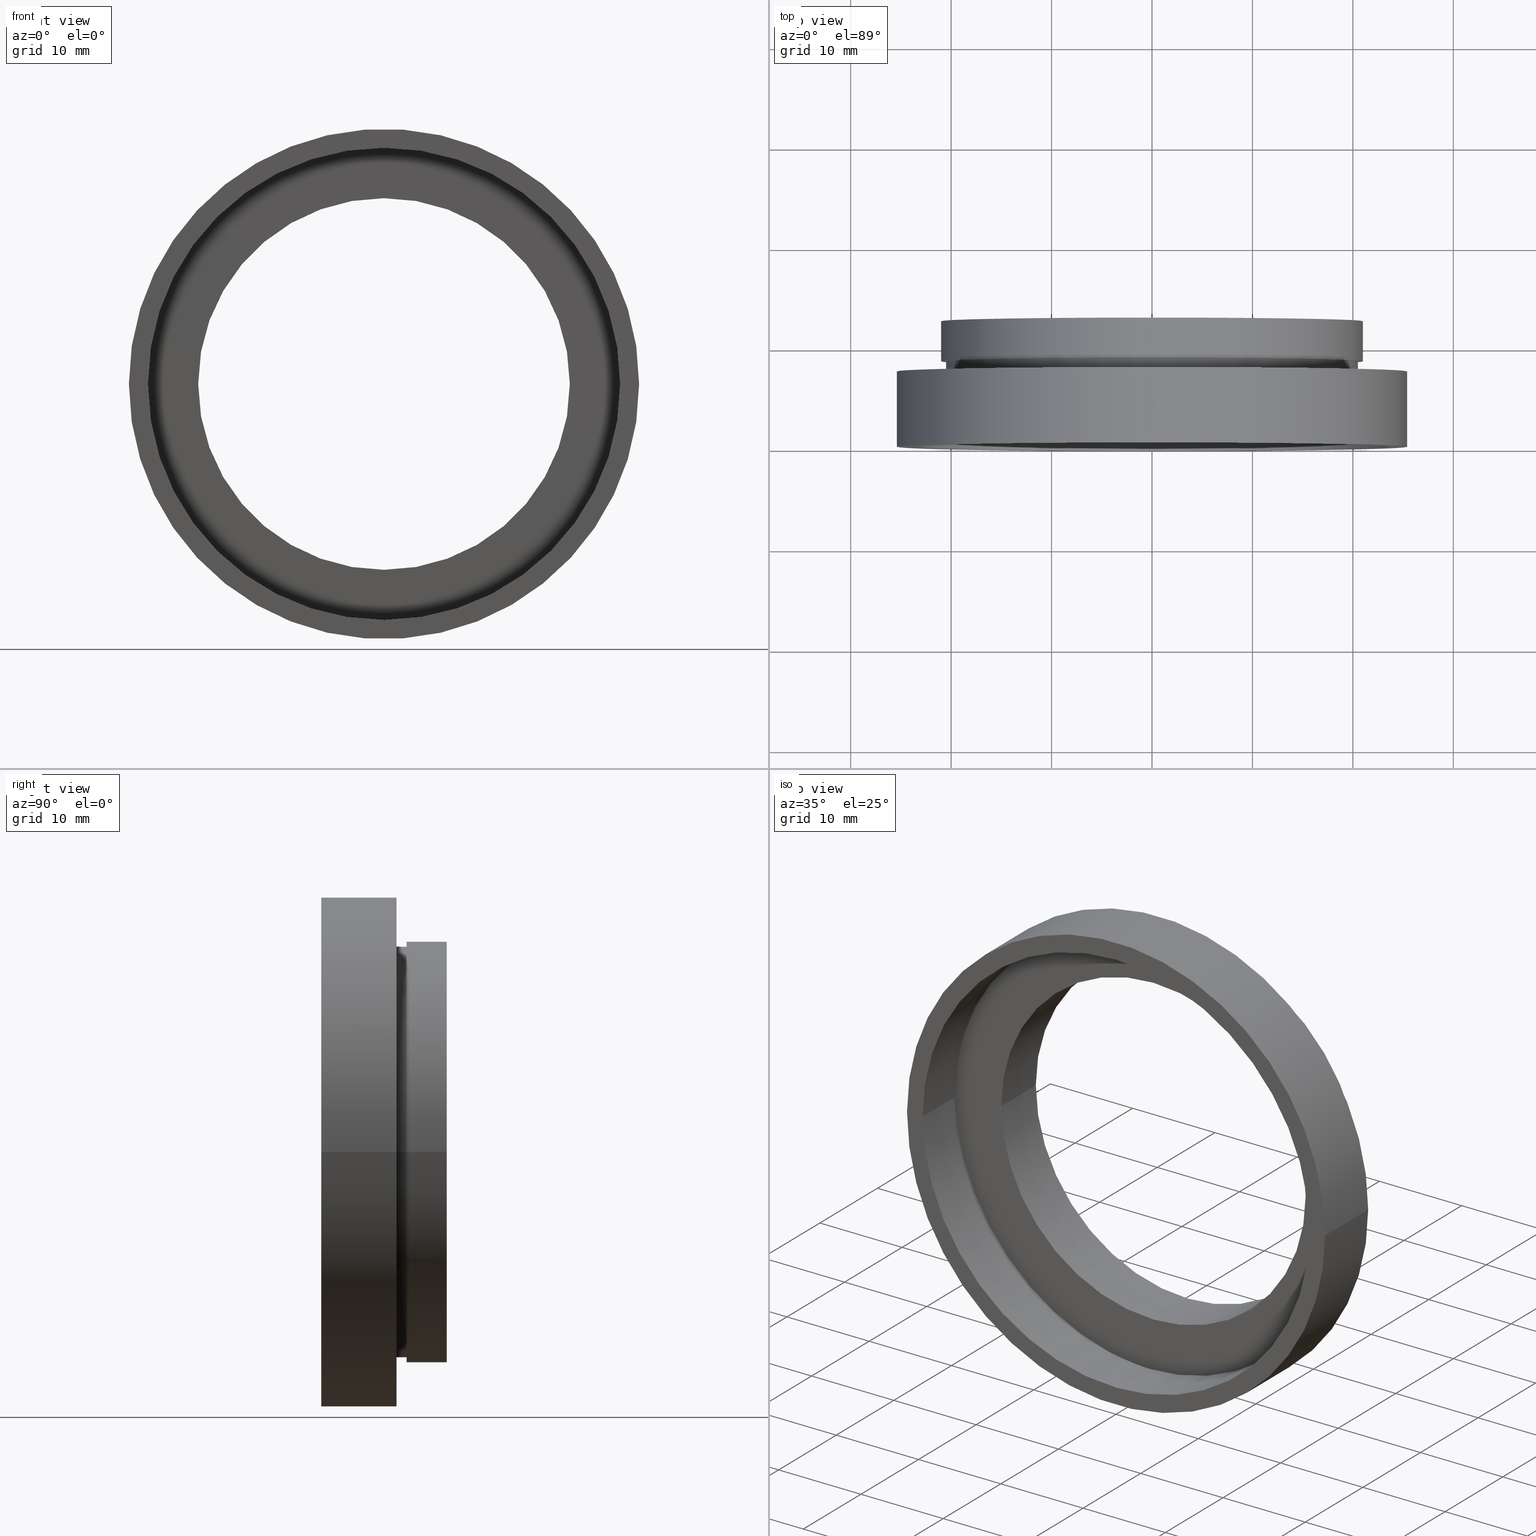
[diagram: canonical four-view strip — front | top / right | iso, engineering-drawing reading convention]
A machine part, canonical four-view strip (front | top / right | iso — engineering-drawing reading convention). The complete STEP part file that produces these views, byte-faithful:
ISO-10303-21;
HEADER;
FILE_DESCRIPTION (( 'STEP AP214' ),
    '1' );
FILE_NAME ('504020.STEP',
    '2019-09-30T07:22:57',
    ( 'user' ),
    ( '΢���й�' ),
    'SwSTEP 2.0',
    'SolidWorks 2016',
    '' );
FILE_SCHEMA (( 'AUTOMOTIVE_DESIGN' ));
ENDSEC;

DATA;
#1 = CARTESIAN_POINT ( 'NONE',  ( 5.371323195044475300E-016, 12.49999999999999600, 0.0000000000000000000 ) ) ;
#2 = ORIENTED_EDGE ( 'NONE', *, *, #577, .F. ) ;
#3 = CARTESIAN_POINT ( 'NONE',  ( -21.00000000000000000, 16.88601823708207300, 0.0000000000000000000 ) ) ;
#4 = AXIS2_PLACEMENT_3D ( 'NONE', #612, #576, #442 ) ;
#5 = FILL_AREA_STYLE_COLOUR ( '', #96 ) ;
#6 = ORIENTED_EDGE ( 'NONE', *, *, #122, .T. ) ;
#7 = ORIENTED_EDGE ( 'NONE', *, *, #250, .F. ) ;
#8 = ORIENTED_EDGE ( 'NONE', *, *, #541, .F. ) ;
#9 = FILL_AREA_STYLE_COLOUR ( '', #385 ) ;
#10 = DIRECTION ( 'NONE',  ( -1.224646799147351000E-016, 1.000000000000000000, -0.0000000000000000000 ) ) ;
#11 = CARTESIAN_POINT ( 'NONE',  ( 0.0000000000000000000, 16.88601823708207700, 0.0000000000000000000 ) ) ;
#12 = ADVANCED_FACE ( 'NONE', ( #47 ), #211, .F. ) ;
#13 = CARTESIAN_POINT ( 'NONE',  ( 0.0000000000000000000, 16.88601823708207700, 0.0000000000000000000 ) ) ;
#14 =( NAMED_UNIT ( * ) SI_UNIT ( $, .STERADIAN. ) SOLID_ANGLE_UNIT ( ) );
#15 =( NAMED_UNIT ( * ) PLANE_ANGLE_UNIT ( ) SI_UNIT ( $, .RADIAN. ) );
#16 = AXIS2_PLACEMENT_3D ( 'NONE', #554, #433, #88 ) ;
#17 = UNCERTAINTY_MEASURE_WITH_UNIT (LENGTH_MEASURE( 1.000000000000000100E-005 ), #418, 'distance_accuracy_value', 'NONE');
#18 = CARTESIAN_POINT ( 'NONE',  ( 20.50000000000000000, 16.88601823708208000, 2.510525938252074500E-015 ) ) ;
#19 = SURFACE_STYLE_USAGE ( .BOTH. , #499 ) ;
#20 = ORIENTED_EDGE ( 'NONE', *, *, #605, .T. ) ;
#21 = ORIENTED_EDGE ( 'NONE', *, *, #605, .F. ) ;
#22 = AXIS2_PLACEMENT_3D ( 'NONE', #141, #133, #132 ) ;
#23 = EDGE_CURVE ( 'NONE', #596, #617, #610, .T. ) ;
#24 =( LENGTH_UNIT ( ) NAMED_UNIT ( * ) SI_UNIT ( .MILLI., .METRE. ) );
#25 = SURFACE_STYLE_FILL_AREA ( #172 ) ;
#26 = SURFACE_STYLE_USAGE ( .BOTH. , #28 ) ;
#27 = DIRECTION ( 'NONE',  ( 1.000000000000000000, 0.0000000000000000000, 0.0000000000000000000 ) ) ;
#28 = SURFACE_SIDE_STYLE ('',( #202 ) ) ;
#29 = APPLICATION_PROTOCOL_DEFINITION ( 'draft international standard', 'automotive_design', 1998, #618 ) ;
#30 = FILL_AREA_STYLE ('',( #43 ) ) ;
#31 = ORIENTED_EDGE ( 'NONE', *, *, #219, .T. ) ;
#32 = UNCERTAINTY_MEASURE_WITH_UNIT (LENGTH_MEASURE( 1.000000000000000100E-005 ), #24, 'distance_accuracy_value', 'NONE');
#33 = AXIS2_PLACEMENT_3D ( 'NONE', #232, #479, #578 ) ;
#34 = ADVANCED_FACE ( 'NONE', ( #393 ), #131, .T. ) ;
#35 = SURFACE_STYLE_FILL_AREA ( #323 ) ;
#36 = DIRECTION ( 'NONE',  ( -1.224646799147351000E-016, 1.000000000000000000, -0.0000000000000000000 ) ) ;
#37 = CYLINDRICAL_SURFACE ( 'NONE', #156, 21.00000000000000000 ) ;
#38 =( GEOMETRIC_REPRESENTATION_CONTEXT ( 3 ) GLOBAL_UNCERTAINTY_ASSIGNED_CONTEXT ( ( #333 ) ) GLOBAL_UNIT_ASSIGNED_CONTEXT ( ( #459, #66, #107 ) ) REPRESENTATION_CONTEXT ( 'NONE', 'WORKASPACE' ) );
#39 = CARTESIAN_POINT ( 'NONE',  ( 0.0000000000000000000, 16.88601823708207700, 0.0000000000000000000 ) ) ;
#40 = VERTEX_POINT ( 'NONE', #546 ) ;
#41 = DIRECTION ( 'NONE',  ( -1.224646799147351000E-016, 1.000000000000000000, -0.0000000000000000000 ) ) ;
#42 = ORIENTED_EDGE ( 'NONE', *, *, #435, .T. ) ;
#43 = FILL_AREA_STYLE_COLOUR ( '', #208 ) ;
#44 = CARTESIAN_POINT ( 'NONE',  ( -25.39999999999999900, 16.88601823708207300, 0.0000000000000000000 ) ) ;
#45 =( GEOMETRIC_REPRESENTATION_CONTEXT ( 3 ) GLOBAL_UNCERTAINTY_ASSIGNED_CONTEXT ( ( #525 ) ) GLOBAL_UNIT_ASSIGNED_CONTEXT ( ( #163, #157, #153 ) ) REPRESENTATION_CONTEXT ( 'NONE', 'WORKASPACE' ) );
#46 = DIRECTION ( 'NONE',  ( -1.224646799147351000E-016, 1.000000000000000000, -0.0000000000000000000 ) ) ;
#47 = FACE_OUTER_BOUND ( 'NONE', #60, .T. ) ;
#48 = DIRECTION ( 'NONE',  ( -1.000000000000000000, -1.365923996832131600E-016, 0.0000000000000000000 ) ) ;
#49 = CARTESIAN_POINT ( 'NONE',  ( 2.067940818438636500E-015, -3.469446951953614200E-015, 0.0000000000000000000 ) ) ;
#50 = CARTESIAN_POINT ( 'NONE',  ( 21.00000000000000000, 16.88601823708208000, 2.571758278209441700E-015 ) ) ;
#51 = DIRECTION ( 'NONE',  ( -1.224646799147351000E-016, 1.000000000000000000, -0.0000000000000000000 ) ) ;
#52 = SURFACE_SIDE_STYLE ('',( #35 ) ) ;
#53 = ORIENTED_EDGE ( 'NONE', *, *, #555, .F. ) ;
#54 = MECHANICAL_DESIGN_GEOMETRIC_PRESENTATION_REPRESENTATION (  '', ( #97 ), #38 ) ;
#55 = DIRECTION ( 'NONE',  ( -1.000000000000000000, -1.875376730785737500E-016, 0.0000000000000000000 ) ) ;
#56 = DIRECTION ( 'NONE',  ( -1.000000000000000000, -1.224646799147351000E-016, 0.0000000000000000000 ) ) ;
#57 = AXIS2_PLACEMENT_3D ( 'NONE', #568, #597, #394 ) ;
#58 = EDGE_CURVE ( 'NONE', #129, #588, #349, .T. ) ;
#59 = DIRECTION ( 'NONE',  ( 1.000000000000000000, 1.224646799147351000E-016, 0.0000000000000000000 ) ) ;
#60 = EDGE_LOOP ( 'NONE', ( #444, #388, #574, #533 ) ) ;
#61 = EDGE_LOOP ( 'NONE', ( #559, #20, #480, #310 ) ) ;
#62 = EDGE_LOOP ( 'NONE', ( #358, #78 ) ) ;
#63 = CIRCLE ( 'NONE', #186, 18.50000000000000000 ) ;
#64 = DIRECTION ( 'NONE',  ( -1.224646799147351000E-016, 1.000000000000000000, 0.0000000000000000000 ) ) ;
#65 = DIRECTION ( 'NONE',  ( -1.000000000000000000, -1.406532548089303000E-016, 0.0000000000000000000 ) ) ;
#66 =( NAMED_UNIT ( * ) PLANE_ANGLE_UNIT ( ) SI_UNIT ( $, .RADIAN. ) );
#67 = AXIS2_PLACEMENT_3D ( 'NONE', #464, #565, #27 ) ;
#68 =( GEOMETRIC_REPRESENTATION_CONTEXT ( 3 ) GLOBAL_UNCERTAINTY_ASSIGNED_CONTEXT ( ( #17 ) ) GLOBAL_UNIT_ASSIGNED_CONTEXT ( ( #418, #539, #256 ) ) REPRESENTATION_CONTEXT ( 'NONE', 'WORKASPACE' ) );
#69 = ORIENTED_EDGE ( 'NONE', *, *, #509, .T. ) ;
#70 = DIRECTION ( 'NONE',  ( -1.224646799147351000E-016, 1.000000000000000000, -0.0000000000000000000 ) ) ;
#71 =( NAMED_UNIT ( * ) SI_UNIT ( $, .STERADIAN. ) SOLID_ANGLE_UNIT ( ) );
#72 = ORIENTED_EDGE ( 'NONE', *, *, #615, .F. ) ;
#73 = ADVANCED_FACE ( 'NONE', ( #114 ), #37, .T. ) ;
#74 =( NAMED_UNIT ( * ) SI_UNIT ( $, .STERADIAN. ) SOLID_ANGLE_UNIT ( ) );
#75 = CARTESIAN_POINT ( 'NONE',  ( 1.271920398992858000E-015, 6.499999999999997300, 0.0000000000000000000 ) ) ;
#76 = CARTESIAN_POINT ( 'NONE',  ( 25.39999999999999900, -1.592040838891564000E-016, 0.0000000000000000000 ) ) ;
#77 = DIRECTION ( 'NONE',  ( -1.224646799147351000E-016, 1.000000000000000000, -0.0000000000000000000 ) ) ;
#78 = ORIENTED_EDGE ( 'NONE', *, *, #372, .F. ) ;
#79 = ADVANCED_FACE ( 'NONE', ( #623 ), #346, .T. ) ;
#80 = CARTESIAN_POINT ( 'NONE',  ( 0.0000000000000000000, 16.88601823708207700, 0.0000000000000000000 ) ) ;
#81 = DIRECTION ( 'NONE',  ( -1.224646799147351000E-016, 1.000000000000000000, -0.0000000000000000000 ) ) ;
#82 = ADVANCED_FACE ( 'NONE', ( #335, #345 ), #221, .F. ) ;
#83 = PLANE ( 'NONE',  #573 ) ;
#84 = DIRECTION ( 'NONE',  ( -1.000000000000000000, -1.107270303814983000E-016, 0.0000000000000000000 ) ) ;
#85 = PRESENTATION_LAYER_ASSIGNMENT (  '', '', ( #97 ) ) ;
#86 =( LENGTH_UNIT ( ) NAMED_UNIT ( * ) SI_UNIT ( .MILLI., .METRE. ) );
#87 = MECHANICAL_DESIGN_GEOMETRIC_PRESENTATION_REPRESENTATION (  '', ( #109 ), #68 ) ;
#88 = DIRECTION ( 'NONE',  ( -1.000000000000000000, -1.439604544379092800E-016, 0.0000000000000000000 ) ) ;
#89 = VERTEX_POINT ( 'NONE', #365 ) ;
#90 = DIRECTION ( 'NONE',  ( -1.224646799147351000E-016, 1.000000000000000000, -0.0000000000000000000 ) ) ;
#91 = DIRECTION ( 'NONE',  ( -1.000000000000000000, -1.365923996832131600E-016, 0.0000000000000000000 ) ) ;
#92 =( NAMED_UNIT ( * ) SI_UNIT ( $, .STERADIAN. ) SOLID_ANGLE_UNIT ( ) );
#93 = EDGE_CURVE ( 'NONE', #89, #461, #336, .T. ) ;
#94 = ORIENTED_EDGE ( 'NONE', *, *, #219, .F. ) ;
#95 = SURFACE_STYLE_FILL_AREA ( #291 ) ;
#96 = COLOUR_RGB ( '',1.000000000000000000, 1.000000000000000000, 1.000000000000000000 ) ;
#97 = STYLED_ITEM ( 'NONE', ( #298 ), #404 ) ;
#98 = PRESENTATION_LAYER_ASSIGNMENT (  '', '', ( #109 ) ) ;
#99 =( NAMED_UNIT ( * ) PLANE_ANGLE_UNIT ( ) SI_UNIT ( $, .RADIAN. ) );
#100 = DIRECTION ( 'NONE',  ( -1.000000000000000000, -1.079703408284319800E-016, 0.0000000000000000000 ) ) ;
#101 = VERTEX_POINT ( 'NONE', #355 ) ;
#102 = MECHANICAL_DESIGN_GEOMETRIC_PRESENTATION_REPRESENTATION (  '', ( #162 ), #45 ) ;
#103 = DIRECTION ( 'NONE',  ( -1.224646799147351000E-016, 1.000000000000000000, -0.0000000000000000000 ) ) ;
#104 = EDGE_CURVE ( 'NONE', #455, #249, #353, .T. ) ;
#105 = CARTESIAN_POINT ( 'NONE',  ( 1.271920398992858200E-015, 6.499999999999995600, 0.0000000000000000000 ) ) ;
#106 = ORIENTED_EDGE ( 'NONE', *, *, #469, .F. ) ;
#107 =( NAMED_UNIT ( * ) SI_UNIT ( $, .STERADIAN. ) SOLID_ANGLE_UNIT ( ) );
#108 = CARTESIAN_POINT ( 'NONE',  ( 1.149455719078122700E-015, 7.499999999999998200, 0.0000000000000000000 ) ) ;
#109 = STYLED_ITEM ( 'NONE', ( #360 ), #124 ) ;
#110 = ORIENTED_EDGE ( 'NONE', *, *, #510, .T. ) ;
#111 = CARTESIAN_POINT ( 'NONE',  ( 0.0000000000000000000, 16.88601823708207700, 0.0000000000000000000 ) ) ;
#112 = ORIENTED_EDGE ( 'NONE', *, *, #93, .T. ) ;
#113 = EDGE_LOOP ( 'NONE', ( #452, #6, #304, #231 ) ) ;
#114 = FACE_OUTER_BOUND ( 'NONE', #599, .T. ) ;
#115 = ORIENTED_EDGE ( 'NONE', *, *, #478, .F. ) ;
#116 = DIRECTION ( 'NONE',  ( -1.000000000000000000, -9.376883653928687400E-017, 0.0000000000000000000 ) ) ;
#117 = CYLINDRICAL_SURFACE ( 'NONE', #155, 21.00000000000000000 ) ;
#118 = DIRECTION ( 'NONE',  ( -1.000000000000000000, -1.365923996832131600E-016, 0.0000000000000000000 ) ) ;
#119 = CARTESIAN_POINT ( 'NONE',  ( 18.50000000000000000, 16.88601823708208000, 2.265596578422603400E-015 ) ) ;
#120 = DIRECTION ( 'NONE',  ( -1.224646799147351000E-016, 1.000000000000000000, -0.0000000000000000000 ) ) ;
#121 = CIRCLE ( 'NONE', #177, 25.39999999999999500 ) ;
#122 = EDGE_CURVE ( 'NONE', #489, #542, #359, .T. ) ;
#123 = CARTESIAN_POINT ( 'NONE',  ( 1.149455719078123100E-015, 7.499999999999996400, 0.0000000000000000000 ) ) ;
#124 = ADVANCED_FACE ( 'NONE', ( #331 ), #416, .F. ) ;
#125 =( GEOMETRIC_REPRESENTATION_CONTEXT ( 3 ) GLOBAL_UNCERTAINTY_ASSIGNED_CONTEXT ( ( #371 ) ) GLOBAL_UNIT_ASSIGNED_CONTEXT ( ( #86, #241, #71 ) ) REPRESENTATION_CONTEXT ( 'NONE', 'WORKASPACE' ) );
#126 = AXIS2_PLACEMENT_3D ( 'NONE', #560, #160, #59 ) ;
#127 = CARTESIAN_POINT ( 'NONE',  ( -21.00000000000000000, 12.49999999999999500, 0.0000000000000000000 ) ) ;
#128 = CIRCLE ( 'NONE', #144, 20.50000000000000000 ) ;
#129 = VERTEX_POINT ( 'NONE', #591 ) ;
#130 = CARTESIAN_POINT ( 'NONE',  ( 1.394385078907593400E-015, 5.499999999999994700, 0.0000000000000000000 ) ) ;
#131 = CYLINDRICAL_SURFACE ( 'NONE', #261, 20.50000000000000000 ) ;
#132 = DIRECTION ( 'NONE',  ( -1.000000000000000000, -1.224646799147351200E-016, 0.0000000000000000000 ) ) ;
#133 = DIRECTION ( 'NONE',  ( -1.224646799147351000E-016, 1.000000000000000000, -0.0000000000000000000 ) ) ;
#134 = PRESENTATION_LAYER_ASSIGNMENT (  '', '', ( #162 ) ) ;
#135 = DIRECTION ( 'NONE',  ( -1.000000000000000000, -1.365923996832131600E-016, 0.0000000000000000000 ) ) ;
#136 = DIRECTION ( 'NONE',  ( -1.224646799147351000E-016, 1.000000000000000000, -0.0000000000000000000 ) ) ;
#137 = CARTESIAN_POINT ( 'NONE',  ( 24.10000000000000100, 5.499999999999997300, 2.951398785945121300E-015 ) ) ;
#138 = ORIENTED_EDGE ( 'NONE', *, *, #469, .T. ) ;
#139 = CARTESIAN_POINT ( 'NONE',  ( 0.0000000000000000000, 16.88601823708207700, 0.0000000000000000000 ) ) ;
#140 = ORIENTED_EDGE ( 'NONE', *, *, #445, .T. ) ;
#141 = CARTESIAN_POINT ( 'NONE',  ( 2.067940818438636500E-015, -3.469446951953614200E-015, 0.0000000000000000000 ) ) ;
#142 = DIRECTION ( 'NONE',  ( -1.000000000000000000, -8.260587980841938800E-017, 0.0000000000000000000 ) ) ;
#143 = ADVANCED_FACE ( 'NONE', ( #411 ), #420, .F. ) ;
#144 = AXIS2_PLACEMENT_3D ( 'NONE', #108, #226, #410 ) ;
#145 = ORIENTED_EDGE ( 'NONE', *, *, #257, .F. ) ;
#146 = CARTESIAN_POINT ( 'NONE',  ( -23.50000000000000000, 16.88601823708207300, 0.0000000000000000000 ) ) ;
#147 = AXIS2_PLACEMENT_3D ( 'NONE', #111, #281, #402 ) ;
#148 = CARTESIAN_POINT ( 'NONE',  ( -18.50000000000000000, 12.49999999999999500, 0.0000000000000000000 ) ) ;
#149 = EDGE_LOOP ( 'NONE', ( #115, #277 ) ) ;
#150 = PRESENTATION_STYLE_ASSIGNMENT (( #19 ) ) ;
#151 = SURFACE_STYLE_FILL_AREA ( #624 ) ;
#152 = COLOUR_RGB ( '',1.000000000000000000, 1.000000000000000000, 1.000000000000000000 ) ;
#153 =( NAMED_UNIT ( * ) SI_UNIT ( $, .STERADIAN. ) SOLID_ANGLE_UNIT ( ) );
#154 = EDGE_CURVE ( 'NONE', #588, #455, #414, .T. ) ;
#155 = AXIS2_PLACEMENT_3D ( 'NONE', #11, #350, #505 ) ;
#156 = AXIS2_PLACEMENT_3D ( 'NONE', #567, #283, #383 ) ;
#157 =( NAMED_UNIT ( * ) PLANE_ANGLE_UNIT ( ) SI_UNIT ( $, .RADIAN. ) );
#158 = SHAPE_DEFINITION_REPRESENTATION ( #193, #404 ) ;
#159 = CIRCLE ( 'NONE', #223, 21.00000000000000000 ) ;
#160 = DIRECTION ( 'NONE',  ( 1.224646799147351000E-016, -1.000000000000000000, 0.0000000000000000000 ) ) ;
#161 = VECTOR ( 'NONE', #10, 1000.000000000000000 ) ;
#162 = STYLED_ITEM ( 'NONE', ( #278 ), #485 ) ;
#163 =( LENGTH_UNIT ( ) NAMED_UNIT ( * ) SI_UNIT ( .MILLI., .METRE. ) );
#164 = CYLINDRICAL_SURFACE ( 'NONE', #337, 23.50000000000000000 ) ;
#165 = ORIENTED_EDGE ( 'NONE', *, *, #334, .F. ) ;
#166 = CIRCLE ( 'NONE', #369, 18.50000000000000000 ) ;
#167 = FACE_OUTER_BOUND ( 'NONE', #543, .T. ) ;
#168 = SURFACE_STYLE_USAGE ( .BOTH. , #169 ) ;
#169 = SURFACE_SIDE_STYLE ('',( #25 ) ) ;
#170 = CARTESIAN_POINT ( 'NONE',  ( -18.50000000000000000, 16.88601823708207300, 0.0000000000000000000 ) ) ;
#171 = LINE ( 'NONE', #3, #161 ) ;
#172 = FILL_AREA_STYLE ('',( #190 ) ) ;
#173 = EDGE_LOOP ( 'NONE', ( #474, #199 ) ) ;
#174 = CIRCLE ( 'NONE', #398, 21.00000000000000000 ) ;
#175 = DIRECTION ( 'NONE',  ( -1.000000000000000000, -8.260587980841938800E-017, 0.0000000000000000000 ) ) ;
#176 = AXIS2_PLACEMENT_3D ( 'NONE', #531, #529, #538 ) ;
#177 = AXIS2_PLACEMENT_3D ( 'NONE', #49, #239, #395 ) ;
#178 = AXIS2_PLACEMENT_3D ( 'NONE', #412, #324, #179 ) ;
#179 = DIRECTION ( 'NONE',  ( -1.000000000000000000, -8.462065736472229800E-017, 0.0000000000000000000 ) ) ;
#180 = DIRECTION ( 'NONE',  ( -1.224646799147351000E-016, 1.000000000000000000, -0.0000000000000000000 ) ) ;
#181 = CARTESIAN_POINT ( 'NONE',  ( 1.026991039163387700E-015, 8.499999999999998200, 0.0000000000000000000 ) ) ;
#182 = CARTESIAN_POINT ( 'NONE',  ( 18.50000000000000000, 6.500000000000000000, 2.265596578422603400E-015 ) ) ;
#183 = CIRCLE ( 'NONE', #192, 21.00000000000000000 ) ;
#184 = UNCERTAINTY_MEASURE_WITH_UNIT (LENGTH_MEASURE( 1.000000000000000100E-005 ), #548, 'distance_accuracy_value', 'NONE');
#185 = ORIENTED_EDGE ( 'NONE', *, *, #397, .T. ) ;
#186 = AXIS2_PLACEMENT_3D ( 'NONE', #75, #70, #65 ) ;
#187 = FACE_OUTER_BOUND ( 'NONE', #589, .T. ) ;
#188 = CARTESIAN_POINT ( 'NONE',  ( 23.50000000000000700, 5.499999999999999100, 2.877919977996281100E-015 ) ) ;
#189 =( NAMED_UNIT ( * ) SI_UNIT ( $, .STERADIAN. ) SOLID_ANGLE_UNIT ( ) );
#190 = FILL_AREA_STYLE_COLOUR ( '', #299 ) ;
#191 = APPLICATION_PROTOCOL_DEFINITION ( 'draft international standard', 'automotive_design', 1998, #319 ) ;
#192 = AXIS2_PLACEMENT_3D ( 'NONE', #181, #180, #175 ) ;
#193 = PRODUCT_DEFINITION_SHAPE ( 'NONE', 'NONE',  #307 ) ;
#194 = DIRECTION ( 'NONE',  ( -1.224646799147351000E-016, 1.000000000000000000, -0.0000000000000000000 ) ) ;
#195 = EDGE_CURVE ( 'NONE', #448, #101, #413, .T. ) ;
#196 = CARTESIAN_POINT ( 'NONE',  ( 18.50000000000000000, 12.49999999999999800, 2.265596578422603400E-015 ) ) ;
#197 = ADVANCED_FACE ( 'NONE', ( #422, #409 ), #616, .F. ) ;
#198 = CARTESIAN_POINT ( 'NONE',  ( 1.026991039163387700E-015, 8.499999999999998200, 0.0000000000000000000 ) ) ;
#199 = ORIENTED_EDGE ( 'NONE', *, *, #195, .F. ) ;
#200 = CYLINDRICAL_SURFACE ( 'NONE', #507, 25.39999999999999900 ) ;
#201 = ORIENTED_EDGE ( 'NONE', *, *, #615, .T. ) ;
#202 = SURFACE_STYLE_FILL_AREA ( #30 ) ;
#203 = PRESENTATION_STYLE_ASSIGNMENT (( #26 ) ) ;
#204 = DIRECTION ( 'NONE',  ( -1.000000000000000000, -1.476360405086644300E-016, 0.0000000000000000000 ) ) ;
#205 = AXIS2_PLACEMENT_3D ( 'NONE', #123, #120, #118 ) ;
#206 =( GEOMETRIC_REPRESENTATION_CONTEXT ( 3 ) GLOBAL_UNCERTAINTY_ASSIGNED_CONTEXT ( ( #213 ) ) GLOBAL_UNIT_ASSIGNED_CONTEXT ( ( #296, #300, #92 ) ) REPRESENTATION_CONTEXT ( 'NONE', 'WORKASPACE' ) );
#207 = CARTESIAN_POINT ( 'NONE',  ( 1.149455719078123100E-015, 7.499999999999996400, 0.0000000000000000000 ) ) ;
#208 = COLOUR_RGB ( '',1.000000000000000000, 1.000000000000000000, 1.000000000000000000 ) ;
#209 = FACE_OUTER_BOUND ( 'NONE', #527, .T. ) ;
#210 = CARTESIAN_POINT ( 'NONE',  ( -21.00000000000000000, 8.499999999999996400, 0.0000000000000000000 ) ) ;
#211 = CYLINDRICAL_SURFACE ( 'NONE', #303, 18.50000000000000000 ) ;
#212 = EDGE_LOOP ( 'NONE', ( #600, #72 ) ) ;
#213 = UNCERTAINTY_MEASURE_WITH_UNIT (LENGTH_MEASURE( 1.000000000000000100E-005 ), #296, 'distance_accuracy_value', 'NONE');
#214 = LINE ( 'NONE', #50, #602 ) ;
#215 = CARTESIAN_POINT ( 'NONE',  ( -24.10000000000000100, 5.499999999999992000, 0.0000000000000000000 ) ) ;
#216 = PLANE ( 'NONE',  #551 ) ;
#217 = EDGE_LOOP ( 'NONE', ( #255, #523, #552, #8 ) ) ;
#218 = FACE_BOUND ( 'NONE', #438, .T. ) ;
#219 = EDGE_CURVE ( 'NONE', #603, #246, #424, .T. ) ;
#220 = VECTOR ( 'NONE', #470, 1000.000000000000000 ) ;
#221 = PLANE ( 'NONE',  #126 ) ;
#222 = FACE_OUTER_BOUND ( 'NONE', #61, .T. ) ;
#223 = AXIS2_PLACEMENT_3D ( 'NONE', #497, #556, #142 ) ;
#224 = MECHANICAL_DESIGN_GEOMETRIC_PRESENTATION_REPRESENTATION (  '', ( #326 ), #206 ) ;
#225 = CARTESIAN_POINT ( 'NONE',  ( 5.371323195044475300E-016, 12.49999999999999600, 0.0000000000000000000 ) ) ;
#226 = DIRECTION ( 'NONE',  ( -1.224646799147351000E-016, 1.000000000000000000, -0.0000000000000000000 ) ) ;
#227 = CIRCLE ( 'NONE', #22, 23.50000000000000000 ) ;
#228 = ORIENTED_EDGE ( 'NONE', *, *, #606, .T. ) ;
#229 = CIRCLE ( 'NONE', #613, 24.10000000000000100 ) ;
#230 = CIRCLE ( 'NONE', #205, 25.39999999999999900 ) ;
#231 = ORIENTED_EDGE ( 'NONE', *, *, #419, .F. ) ;
#232 = CARTESIAN_POINT ( 'NONE',  ( 0.0000000000000000000, 16.88601823708207700, 0.0000000000000000000 ) ) ;
#233 = AXIS2_PLACEMENT_3D ( 'NONE', #198, #316, #421 ) ;
#234 =( NAMED_UNIT ( * ) PLANE_ANGLE_UNIT ( ) SI_UNIT ( $, .RADIAN. ) );
#235 = ADVANCED_FACE ( 'NONE', ( #429, #187 ), #216, .F. ) ;
#236 = EDGE_CURVE ( 'NONE', #40, #534, #288, .T. ) ;
#237 = UNCERTAINTY_MEASURE_WITH_UNIT (LENGTH_MEASURE( 1.000000000000000100E-005 ), #557, 'distance_accuracy_value', 'NONE');
#238 = ORIENTED_EDGE ( 'NONE', *, *, #478, .T. ) ;
#239 = DIRECTION ( 'NONE',  ( -1.224646799147351000E-016, 1.000000000000000000, -0.0000000000000000000 ) ) ;
#240 = CARTESIAN_POINT ( 'NONE',  ( 24.10000000000000100, 16.88601823708208000, 2.951398785945121300E-015 ) ) ;
#241 =( NAMED_UNIT ( * ) PLANE_ANGLE_UNIT ( ) SI_UNIT ( $, .RADIAN. ) );
#242 = CARTESIAN_POINT ( 'NONE',  ( 2.067940818438636500E-015, -3.469446951953614200E-015, 0.0000000000000000000 ) ) ;
#243 = AXIS2_PLACEMENT_3D ( 'NONE', #332, #619, #340 ) ;
#244 = VERTEX_POINT ( 'NONE', #458 ) ;
#245 =( GEOMETRIC_REPRESENTATION_CONTEXT ( 3 ) GLOBAL_UNCERTAINTY_ASSIGNED_CONTEXT ( ( #184 ) ) GLOBAL_UNIT_ASSIGNED_CONTEXT ( ( #548, #234, #189 ) ) REPRESENTATION_CONTEXT ( 'NONE', 'WORKASPACE' ) );
#246 = VERTEX_POINT ( 'NONE', #215 ) ;
#247 = DIRECTION ( 'NONE',  ( -1.224646799147351000E-016, 1.000000000000000000, -0.0000000000000000000 ) ) ;
#248 = PRESENTATION_LAYER_ASSIGNMENT (  '', '', ( #326 ) ) ;
#249 = VERTEX_POINT ( 'NONE', #457 ) ;
#250 = EDGE_CURVE ( 'NONE', #246, #101, #481, .T. ) ;
#251 = DIRECTION ( 'NONE',  ( -1.000000000000000000, -1.224646799147351200E-016, 0.0000000000000000000 ) ) ;
#252 = CARTESIAN_POINT ( 'NONE',  ( 24.10000000000000100, 6.499999999999998200, 2.951398785945121300E-015 ) ) ;
#253 = EDGE_LOOP ( 'NONE', ( #504, #112, #286, #374 ) ) ;
#254 = LINE ( 'NONE', #146, #441 ) ;
#255 = ORIENTED_EDGE ( 'NONE', *, *, #426, .F. ) ;
#256 =( NAMED_UNIT ( * ) SI_UNIT ( $, .STERADIAN. ) SOLID_ANGLE_UNIT ( ) );
#257 = EDGE_CURVE ( 'NONE', #129, #249, #553, .T. ) ;
#258 = CARTESIAN_POINT ( 'NONE',  ( 5.371323195044475300E-016, 12.49999999999999600, 0.0000000000000000000 ) ) ;
#259 = FILL_AREA_STYLE ('',( #5 ) ) ;
#260 = MECHANICAL_DESIGN_GEOMETRIC_PRESENTATION_REPRESENTATION (  '', ( #302 ), #245 ) ;
#261 = AXIS2_PLACEMENT_3D ( 'NONE', #139, #317, #579 ) ;
#262 = DIRECTION ( 'NONE',  ( -1.224646799147351000E-016, 1.000000000000000000, -0.0000000000000000000 ) ) ;
#263 = VERTEX_POINT ( 'NONE', #472 ) ;
#264 = ORIENTED_EDGE ( 'NONE', *, *, #389, .T. ) ;
#265 = VERTEX_POINT ( 'NONE', #486 ) ;
#266 = FACE_OUTER_BOUND ( 'NONE', #483, .T. ) ;
#267 = PRODUCT_DEFINITION_CONTEXT ( 'detailed design', #319, 'design' ) ;
#268 = DIRECTION ( 'NONE',  ( -1.224646799147351000E-016, 1.000000000000000000, -0.0000000000000000000 ) ) ;
#269 = PRODUCT_DEFINITION_FORMATION_WITH_SPECIFIED_SOURCE ( '�κ�', '', #430, .NOT_KNOWN. ) ;
#270 = DIRECTION ( 'NONE',  ( -1.000000000000000000, -8.260587980841938800E-017, 0.0000000000000000000 ) ) ;
#271 = AXIS2_PLACEMENT_3D ( 'NONE', #258, #268, #270 ) ;
#272 = CARTESIAN_POINT ( 'NONE',  ( 25.39999999999999900, 7.500000000000000000, 3.110602869834276900E-015 ) ) ;
#273 = ADVANCED_FACE ( 'NONE', ( #484, #454 ), #477, .F. ) ;
#274 = ORIENTED_EDGE ( 'NONE', *, *, #389, .F. ) ;
#275 = EDGE_CURVE ( 'NONE', #489, #313, #495, .T. ) ;
#276 = CARTESIAN_POINT ( 'NONE',  ( 20.50000000000000000, 8.500000000000000000, 2.510525938252074500E-015 ) ) ;
#277 = ORIENTED_EDGE ( 'NONE', *, *, #606, .F. ) ;
#278 = PRESENTATION_STYLE_ASSIGNMENT (( #168 ) ) ;
#279 = VECTOR ( 'NONE', #194, 1000.000000000000000 ) ;
#280 = DIRECTION ( 'NONE',  ( -1.224646799147351000E-016, 1.000000000000000000, -0.0000000000000000000 ) ) ;
#281 = DIRECTION ( 'NONE',  ( -1.224646799147351000E-016, 1.000000000000000000, -0.0000000000000000000 ) ) ;
#282 = SURFACE_SIDE_STYLE ('',( #584 ) ) ;
#283 = DIRECTION ( 'NONE',  ( -1.224646799147351000E-016, 1.000000000000000000, -0.0000000000000000000 ) ) ;
#284 = CARTESIAN_POINT ( 'NONE',  ( 1.149455719078122700E-015, 7.499999999999998200, 0.0000000000000000000 ) ) ;
#285 = EDGE_LOOP ( 'NONE', ( #264, #31 ) ) ;
#286 = ORIENTED_EDGE ( 'NONE', *, *, #397, .F. ) ;
#287 = DIRECTION ( 'NONE',  ( -1.224646799147351000E-016, 1.000000000000000000, -0.0000000000000000000 ) ) ;
#288 = LINE ( 'NONE', #453, #434 ) ;
#289 = PRESENTATION_LAYER_ASSIGNMENT (  '', '', ( #302 ) ) ;
#290 = DIRECTION ( 'NONE',  ( -1.000000000000000000, -1.269309860470834500E-016, 0.0000000000000000000 ) ) ;
#291 = FILL_AREA_STYLE ('',( #368 ) ) ;
#292 = ADVANCED_FACE ( 'NONE', ( #492, #493 ), #515, .F. ) ;
#293 = SURFACE_SIDE_STYLE ('',( #95 ) ) ;
#294 = EDGE_CURVE ( 'NONE', #405, #534, #500, .T. ) ;
#295 = SURFACE_STYLE_USAGE ( .BOTH. , #293 ) ;
#296 =( LENGTH_UNIT ( ) NAMED_UNIT ( * ) SI_UNIT ( .MILLI., .METRE. ) );
#297 = CIRCLE ( 'NONE', #233, 20.50000000000000000 ) ;
#298 = PRESENTATION_STYLE_ASSIGNMENT (( #570 ) ) ;
#299 = COLOUR_RGB ( '',1.000000000000000000, 1.000000000000000000, 1.000000000000000000 ) ;
#300 =( NAMED_UNIT ( * ) PLANE_ANGLE_UNIT ( ) SI_UNIT ( $, .RADIAN. ) );
#301 = FILL_AREA_STYLE_COLOUR ( '', #152 ) ;
#302 = STYLED_ITEM ( 'NONE', ( #150 ), #598 ) ;
#303 = AXIS2_PLACEMENT_3D ( 'NONE', #329, #280, #55 ) ;
#304 = ORIENTED_EDGE ( 'NONE', *, *, #372, .T. ) ;
#305 = VECTOR ( 'NONE', #46, 1000.000000000000000 ) ;
#306 = CIRCLE ( 'NONE', #348, 23.50000000000000000 ) ;
#307 = PRODUCT_DEFINITION ( 'δ֪', '', #269, #267 ) ;
#308 = ADVANCED_FACE ( 'NONE', ( #522 ), #517, .F. ) ;
#309 = AXIS2_PLACEMENT_3D ( 'NONE', #482, #506, #502 ) ;
#310 = ORIENTED_EDGE ( 'NONE', *, *, #509, .F. ) ;
#311 = CARTESIAN_POINT ( 'NONE',  ( 25.39999999999999900, 16.88601823708208000, 3.110602869834276900E-015 ) ) ;
#312 = LINE ( 'NONE', #170, #305 ) ;
#313 = VERTEX_POINT ( 'NONE', #400 ) ;
#314 = CYLINDRICAL_SURFACE ( 'NONE', #386, 18.50000000000000000 ) ;
#315 = CIRCLE ( 'NONE', #271, 21.00000000000000000 ) ;
#316 = DIRECTION ( 'NONE',  ( -1.224646799147351000E-016, 1.000000000000000000, -0.0000000000000000000 ) ) ;
#317 = DIRECTION ( 'NONE',  ( -1.224646799147351000E-016, 1.000000000000000000, -0.0000000000000000000 ) ) ;
#318 = CARTESIAN_POINT ( 'NONE',  ( 18.50000000000000000, 6.499999999999999100, 0.0000000000000000000 ) ) ;
#319 = APPLICATION_CONTEXT ( 'automotive_design' ) ;
#320 = CIRCLE ( 'NONE', #403, 18.50000000000000000 ) ;
#321 = CIRCLE ( 'NONE', #377, 25.39999999999999900 ) ;
#322 = CARTESIAN_POINT ( 'NONE',  ( 0.0000000000000000000, 16.88601823708207700, 0.0000000000000000000 ) ) ;
#323 = FILL_AREA_STYLE ('',( #9 ) ) ;
#324 = DIRECTION ( 'NONE',  ( -1.224646799147351000E-016, 1.000000000000000000, -0.0000000000000000000 ) ) ;
#325 = AXIS2_PLACEMENT_3D ( 'NONE', #437, #136, #84 ) ;
#326 = STYLED_ITEM ( 'NONE', ( #622 ), #73 ) ;
#327 = FILL_AREA_STYLE_COLOUR ( '', #536 ) ;
#328 = EDGE_CURVE ( 'NONE', #534, #405, #608, .T. ) ;
#329 = CARTESIAN_POINT ( 'NONE',  ( 0.0000000000000000000, 16.88601823708207700, 0.0000000000000000000 ) ) ;
#330 = ORIENTED_EDGE ( 'NONE', *, *, #58, .T. ) ;
#331 = FACE_OUTER_BOUND ( 'NONE', #217, .T. ) ;
#332 = CARTESIAN_POINT ( 'NONE',  ( 1.394385078907593200E-015, 5.499999999999996400, 0.0000000000000000000 ) ) ;
#333 = UNCERTAINTY_MEASURE_WITH_UNIT (LENGTH_MEASURE( 1.000000000000000100E-005 ), #459, 'distance_accuracy_value', 'NONE');
#334 = EDGE_CURVE ( 'NONE', #596, #89, #513, .T. ) ;
#335 = FACE_BOUND ( 'NONE', #367, .T. ) ;
#336 = LINE ( 'NONE', #311, #356 ) ;
#337 = AXIS2_PLACEMENT_3D ( 'NONE', #39, #36, #204 ) ;
#338 = AXIS2_PLACEMENT_3D ( 'NONE', #284, #287, #290 ) ;
#339 = DIRECTION ( 'NONE',  ( -1.224646799147351000E-016, 1.000000000000000000, -0.0000000000000000000 ) ) ;
#340 = DIRECTION ( 'NONE',  ( -1.000000000000000000, -1.107270303814983000E-016, 0.0000000000000000000 ) ) ;
#341 = ADVANCED_FACE ( 'NONE', ( #503 ), #462, .T. ) ;
#342 = CARTESIAN_POINT ( 'NONE',  ( -23.50000000000000400, 5.499999999999993800, 0.0000000000000000000 ) ) ;
#343 = EDGE_LOOP ( 'NONE', ( #140, #587 ) ) ;
#344 = EDGE_LOOP ( 'NONE', ( #42, #447 ) ) ;
#345 = FACE_OUTER_BOUND ( 'NONE', #285, .T. ) ;
#346 = CYLINDRICAL_SURFACE ( 'NONE', #147, 20.50000000000000000 ) ;
#347 = DIRECTION ( 'NONE',  ( -1.224646799147351000E-016, 1.000000000000000000, -0.0000000000000000000 ) ) ;
#348 = AXIS2_PLACEMENT_3D ( 'NONE', #242, #247, #251 ) ;
#349 = CIRCLE ( 'NONE', #338, 20.50000000000000000 ) ;
#350 = DIRECTION ( 'NONE',  ( -1.224646799147351000E-016, 1.000000000000000000, -0.0000000000000000000 ) ) ;
#351 = CARTESIAN_POINT ( 'NONE',  ( 0.0000000000000000000, 16.88601823708207700, 0.0000000000000000000 ) ) ;
#352 = DIRECTION ( 'NONE',  ( -1.000000000000000000, -1.224646799147351000E-016, 0.0000000000000000000 ) ) ;
#353 = CIRCLE ( 'NONE', #178, 20.50000000000000000 ) ;
#354 = ADVANCED_FACE ( 'NONE', ( #512 ), #314, .F. ) ;
#355 = CARTESIAN_POINT ( 'NONE',  ( -24.10000000000000100, 6.499999999999992900, 0.0000000000000000000 ) ) ;
#356 = VECTOR ( 'NONE', #262, 1000.000000000000000 ) ;
#357 = AXIS2_PLACEMENT_3D ( 'NONE', #545, #381, #352 ) ;
#358 = ORIENTED_EDGE ( 'NONE', *, *, #566, .F. ) ;
#359 = LINE ( 'NONE', #119, #475 ) ;
#360 = PRESENTATION_STYLE_ASSIGNMENT (( #550 ) ) ;
#361 = ORIENTED_EDGE ( 'NONE', *, *, #294, .T. ) ;
#362 = ORIENTED_EDGE ( 'NONE', *, *, #257, .T. ) ;
#363 = DIRECTION ( 'NONE',  ( -1.000000000000000000, -8.260587980841938800E-017, 0.0000000000000000000 ) ) ;
#364 = FILL_AREA_STYLE_COLOUR ( '', #373 ) ;
#365 = CARTESIAN_POINT ( 'NONE',  ( 25.39999999999999900, -3.588440821193433400E-016, 3.110602869834276900E-015 ) ) ;
#366 = SURFACE_STYLE_FILL_AREA ( #530 ) ;
#367 = EDGE_LOOP ( 'NONE', ( #406, #384 ) ) ;
#368 = FILL_AREA_STYLE_COLOUR ( '', #423 ) ;
#369 = AXIS2_PLACEMENT_3D ( 'NONE', #1, #77, #391 ) ;
#370 =( GEOMETRIC_REPRESENTATION_CONTEXT ( 3 ) GLOBAL_UNCERTAINTY_ASSIGNED_CONTEXT ( ( #237 ) ) GLOBAL_UNIT_ASSIGNED_CONTEXT ( ( #557, #99, #74 ) ) REPRESENTATION_CONTEXT ( 'NONE', 'WORKASPACE' ) );
#371 = UNCERTAINTY_MEASURE_WITH_UNIT (LENGTH_MEASURE( 1.000000000000000100E-005 ), #86, 'distance_accuracy_value', 'NONE');
#372 = EDGE_CURVE ( 'NONE', #542, #501, #320, .T. ) ;
#373 = COLOUR_RGB ( '',1.000000000000000000, 1.000000000000000000, 1.000000000000000000 ) ;
#374 = ORIENTED_EDGE ( 'NONE', *, *, #23, .F. ) ;
#375 = SURFACE_SIDE_STYLE ('',( #366 ) ) ;
#376 = ORIENTED_EDGE ( 'NONE', *, *, #236, .F. ) ;
#377 = AXIS2_PLACEMENT_3D ( 'NONE', #207, #593, #135 ) ;
#378 = CARTESIAN_POINT ( 'NONE',  ( 5.371323195044475300E-016, 12.49999999999999600, 0.0000000000000000000 ) ) ;
#379 = ORIENTED_EDGE ( 'NONE', *, *, #154, .T. ) ;
#380 = EDGE_LOOP ( 'NONE', ( #415, #514 ) ) ;
#381 = DIRECTION ( 'NONE',  ( -1.224646799147351000E-016, 1.000000000000000000, -0.0000000000000000000 ) ) ;
#382 = CARTESIAN_POINT ( 'NONE',  ( 20.50000000000000000, 7.500000000000000900, 2.510525938252074500E-015 ) ) ;
#383 = DIRECTION ( 'NONE',  ( -1.000000000000000000, -1.652117596168387800E-016, 0.0000000000000000000 ) ) ;
#384 = ORIENTED_EDGE ( 'NONE', *, *, #328, .F. ) ;
#385 = COLOUR_RGB ( '',1.000000000000000000, 1.000000000000000000, 1.000000000000000000 ) ;
#386 = AXIS2_PLACEMENT_3D ( 'NONE', #351, #347, #582 ) ;
#387 = DIRECTION ( 'NONE',  ( -1.224646799147351000E-016, 1.000000000000000000, -0.0000000000000000000 ) ) ;
#388 = ORIENTED_EDGE ( 'NONE', *, *, #544, .F. ) ;
#389 = EDGE_CURVE ( 'NONE', #246, #603, #558, .T. ) ;
#390 = DIRECTION ( 'NONE',  ( -1.224646799147351000E-016, 1.000000000000000000, -0.0000000000000000000 ) ) ;
#391 = DIRECTION ( 'NONE',  ( -1.000000000000000000, -9.376883653928687400E-017, 0.0000000000000000000 ) ) ;
#392 = ORIENTED_EDGE ( 'NONE', *, *, #195, .T. ) ;
#393 = FACE_OUTER_BOUND ( 'NONE', #473, .T. ) ;
#394 = DIRECTION ( 'NONE',  ( -1.000000000000000000, -1.079703408284319800E-016, 0.0000000000000000000 ) ) ;
#395 = DIRECTION ( 'NONE',  ( -1.000000000000000000, -1.224646799147351000E-016, 0.0000000000000000000 ) ) ;
#396 = DIRECTION ( 'NONE',  ( -1.000000000000000000, -1.439604544379092800E-016, 0.0000000000000000000 ) ) ;
#397 = EDGE_CURVE ( 'NONE', #617, #461, #321, .T. ) ;
#398 = AXIS2_PLACEMENT_3D ( 'NONE', #225, #456, #363 ) ;
#399 = MECHANICAL_DESIGN_GEOMETRIC_PRESENTATION_REPRESENTATION (  '', ( #467 ), #370 ) ;
#400 = CARTESIAN_POINT ( 'NONE',  ( -18.50000000000000000, 6.499999999999994700, 0.0000000000000000000 ) ) ;
#401 = PRODUCT_RELATED_PRODUCT_CATEGORY ( 'part', '', ( #430 ) ) ;
#402 = DIRECTION ( 'NONE',  ( -1.000000000000000000, -1.692413147294446000E-016, 0.0000000000000000000 ) ) ;
#403 = AXIS2_PLACEMENT_3D ( 'NONE', #378, #609, #116 ) ;
#404 = ADVANCED_BREP_SHAPE_REPRESENTATION ( '504020', ( #485, #67 ), #125 ) ;
#405 = VERTEX_POINT ( 'NONE', #342 ) ;
#406 = ORIENTED_EDGE ( 'NONE', *, *, #294, .F. ) ;
#407 = ORIENTED_EDGE ( 'NONE', *, *, #541, .T. ) ;
#408 = VECTOR ( 'NONE', #564, 1000.000000000000000 ) ;
#409 = FACE_BOUND ( 'NONE', #380, .T. ) ;
#410 = DIRECTION ( 'NONE',  ( -1.000000000000000000, -1.269309860470834500E-016, 0.0000000000000000000 ) ) ;
#411 = FACE_OUTER_BOUND ( 'NONE', #494, .T. ) ;
#412 = CARTESIAN_POINT ( 'NONE',  ( 1.026991039163387700E-015, 8.499999999999998200, 0.0000000000000000000 ) ) ;
#413 = CIRCLE ( 'NONE', #57, 24.10000000000000100 ) ;
#414 = LINE ( 'NONE', #18, #408 ) ;
#415 = ORIENTED_EDGE ( 'NONE', *, *, #544, .T. ) ;
#416 = CYLINDRICAL_SURFACE ( 'NONE', #33, 23.50000000000000000 ) ;
#417 = AXIS2_PLACEMENT_3D ( 'NONE', #130, #595, #601 ) ;
#418 =( LENGTH_UNIT ( ) NAMED_UNIT ( * ) SI_UNIT ( .MILLI., .METRE. ) );
#419 = EDGE_CURVE ( 'NONE', #313, #501, #312, .T. ) ;
#420 = CYLINDRICAL_SURFACE ( 'NONE', #16, 24.10000000000000100 ) ;
#421 = DIRECTION ( 'NONE',  ( -1.000000000000000000, -8.462065736472229800E-017, 0.0000000000000000000 ) ) ;
#422 = FACE_OUTER_BOUND ( 'NONE', #173, .T. ) ;
#423 = COLOUR_RGB ( '',1.000000000000000000, 1.000000000000000000, 1.000000000000000000 ) ;
#424 = CIRCLE ( 'NONE', #4, 24.10000000000000100 ) ;
#425 =( NAMED_UNIT ( * ) SI_UNIT ( $, .STERADIAN. ) SOLID_ANGLE_UNIT ( ) );
#426 = EDGE_CURVE ( 'NONE', #40, #244, #306, .T. ) ;
#427 =( NAMED_UNIT ( * ) PLANE_ANGLE_UNIT ( ) SI_UNIT ( $, .RADIAN. ) );
#428 =( GEOMETRIC_REPRESENTATION_CONTEXT ( 3 ) GLOBAL_UNCERTAINTY_ASSIGNED_CONTEXT ( ( #32 ) ) GLOBAL_UNIT_ASSIGNED_CONTEXT ( ( #24, #15, #14 ) ) REPRESENTATION_CONTEXT ( 'NONE', 'WORKASPACE' ) );
#429 = FACE_BOUND ( 'NONE', #212, .T. ) ;
#430 = PRODUCT ( '504020', '504020', '', ( #520 ) ) ;
#431 = PRESENTATION_LAYER_ASSIGNMENT (  '', '', ( #467 ) ) ;
#432 = ORIENTED_EDGE ( 'NONE', *, *, #575, .F. ) ;
#433 = DIRECTION ( 'NONE',  ( -1.224646799147351000E-016, 1.000000000000000000, -0.0000000000000000000 ) ) ;
#434 = VECTOR ( 'NONE', #450, 1000.000000000000000 ) ;
#435 = EDGE_CURVE ( 'NONE', #532, #265, #315, .T. ) ;
#436 = SURFACE_STYLE_USAGE ( .BOTH. , #547 ) ;
#437 = CARTESIAN_POINT ( 'NONE',  ( 1.394385078907593200E-015, 5.499999999999996400, 0.0000000000000000000 ) ) ;
#438 = EDGE_LOOP ( 'NONE', ( #491, #614 ) ) ;
#439 = DIRECTION ( 'NONE',  ( 1.224646799147351000E-016, -1.000000000000000000, 0.0000000000000000000 ) ) ;
#440 = AXIS2_PLACEMENT_3D ( 'NONE', #511, #535, #569 ) ;
#441 = VECTOR ( 'NONE', #90, 1000.000000000000000 ) ;
#442 = DIRECTION ( 'NONE',  ( -1.000000000000000000, -1.079703408284319800E-016, 0.0000000000000000000 ) ) ;
#443 = LINE ( 'NONE', #240, #279 ) ;
#444 = ORIENTED_EDGE ( 'NONE', *, *, #122, .F. ) ;
#445 = EDGE_CURVE ( 'NONE', #249, #455, #297, .T. ) ;
#446 = DIRECTION ( 'NONE',  ( 1.000000000000000000, 1.224646799147351000E-016, 0.0000000000000000000 ) ) ;
#447 = ORIENTED_EDGE ( 'NONE', *, *, #577, .T. ) ;
#448 = VERTEX_POINT ( 'NONE', #252 ) ;
#449 = CARTESIAN_POINT ( 'NONE',  ( -24.10000000000000100, 16.88601823708207300, 0.0000000000000000000 ) ) ;
#450 = DIRECTION ( 'NONE',  ( -1.224646799147351000E-016, 1.000000000000000000, -0.0000000000000000000 ) ) ;
#451 = ORIENTED_EDGE ( 'NONE', *, *, #575, .T. ) ;
#452 = ORIENTED_EDGE ( 'NONE', *, *, #275, .F. ) ;
#453 = CARTESIAN_POINT ( 'NONE',  ( 23.50000000000000000, 16.88601823708208000, 2.877919977996280300E-015 ) ) ;
#454 = FACE_OUTER_BOUND ( 'NONE', #344, .T. ) ;
#455 = VERTEX_POINT ( 'NONE', #276 ) ;
#456 = DIRECTION ( 'NONE',  ( -1.224646799147351000E-016, 1.000000000000000000, -0.0000000000000000000 ) ) ;
#457 = CARTESIAN_POINT ( 'NONE',  ( -20.50000000000000000, 8.499999999999996400, 0.0000000000000000000 ) ) ;
#458 = CARTESIAN_POINT ( 'NONE',  ( -23.49999999999999600, -6.347366929949889400E-015, 0.0000000000000000000 ) ) ;
#459 =( LENGTH_UNIT ( ) NAMED_UNIT ( * ) SI_UNIT ( .MILLI., .METRE. ) );
#460 = ORIENTED_EDGE ( 'NONE', *, *, #555, .T. ) ;
#461 = VERTEX_POINT ( 'NONE', #272 ) ;
#462 = CYLINDRICAL_SURFACE ( 'NONE', #516, 25.39999999999999900 ) ;
#463 = EDGE_LOOP ( 'NONE', ( #330, #379, #581, #145 ) ) ;
#464 = CARTESIAN_POINT ( 'NONE',  ( 0.0000000000000000000, 0.0000000000000000000, 0.0000000000000000000 ) ) ;
#465 = MECHANICAL_DESIGN_GEOMETRIC_PRESENTATION_REPRESENTATION (  '', ( #540 ), #428 ) ;
#466 = SURFACE_STYLE_USAGE ( .BOTH. , #52 ) ;
#467 = STYLED_ITEM ( 'NONE', ( #611 ), #12 ) ;
#468 = CARTESIAN_POINT ( 'NONE',  ( -20.50000000000000000, 16.88601823708207300, 0.0000000000000000000 ) ) ;
#469 = EDGE_CURVE ( 'NONE', #603, #448, #443, .T. ) ;
#470 = DIRECTION ( 'NONE',  ( -1.224646799147351000E-016, 1.000000000000000000, -0.0000000000000000000 ) ) ;
#471 = VERTEX_POINT ( 'NONE', #210 ) ;
#472 = CARTESIAN_POINT ( 'NONE',  ( 21.00000000000000000, 8.500000000000000000, 2.571758278209441700E-015 ) ) ;
#473 = EDGE_LOOP ( 'NONE', ( #604, #201, #362, #620 ) ) ;
#474 = ORIENTED_EDGE ( 'NONE', *, *, #510, .F. ) ;
#475 = VECTOR ( 'NONE', #339, 1000.000000000000000 ) ;
#476 =( GEOMETRIC_REPRESENTATION_CONTEXT ( 3 ) GLOBAL_UNCERTAINTY_ASSIGNED_CONTEXT ( ( #518 ) ) GLOBAL_UNIT_ASSIGNED_CONTEXT ( ( #521, #427, #425 ) ) REPRESENTATION_CONTEXT ( 'NONE', 'WORKASPACE' ) );
#477 = PLANE ( 'NONE',  #309 ) ;
#478 = EDGE_CURVE ( 'NONE', #471, #263, #183, .T. ) ;
#479 = DIRECTION ( 'NONE',  ( -1.224646799147351000E-016, 1.000000000000000000, -0.0000000000000000000 ) ) ;
#480 = ORIENTED_EDGE ( 'NONE', *, *, #23, .T. ) ;
#481 = LINE ( 'NONE', #449, #490 ) ;
#482 = CARTESIAN_POINT ( 'NONE',  ( 18.50000000000000000, 12.49999999999999800, 0.0000000000000000000 ) ) ;
#483 = EDGE_LOOP ( 'NONE', ( #165, #21 ) ) ;
#484 = FACE_BOUND ( 'NONE', #62, .T. ) ;
#485 = MANIFOLD_SOLID_BREP ( '��ת1', #607 ) ;
#486 = CARTESIAN_POINT ( 'NONE',  ( 21.00000000000000000, 12.49999999999999800, 2.571758278209441700E-015 ) ) ;
#487 = CARTESIAN_POINT ( 'NONE',  ( -25.39999999999999100, -6.580049821787884700E-015, 0.0000000000000000000 ) ) ;
#488 = MECHANICAL_DESIGN_GEOMETRIC_PRESENTATION_REPRESENTATION (  '', ( #526 ), #476 ) ;
#489 = VERTEX_POINT ( 'NONE', #182 ) ;
#490 = VECTOR ( 'NONE', #387, 1000.000000000000000 ) ;
#491 = ORIENTED_EDGE ( 'NONE', *, *, #496, .T. ) ;
#492 = FACE_OUTER_BOUND ( 'NONE', #149, .T. ) ;
#493 = FACE_BOUND ( 'NONE', #343, .T. ) ;
#494 = EDGE_LOOP ( 'NONE', ( #94, #138, #392, #7 ) ) ;
#495 = CIRCLE ( 'NONE', #176, 18.50000000000000000 ) ;
#496 = EDGE_CURVE ( 'NONE', #244, #40, #227, .T. ) ;
#497 = CARTESIAN_POINT ( 'NONE',  ( 1.026991039163387700E-015, 8.499999999999998200, 0.0000000000000000000 ) ) ;
#498 = DIRECTION ( 'NONE',  ( -1.224646799147351000E-016, 1.000000000000000000, 0.0000000000000000000 ) ) ;
#499 = SURFACE_SIDE_STYLE ('',( #151 ) ) ;
#500 = CIRCLE ( 'NONE', #325, 23.50000000000000400 ) ;
#501 = VERTEX_POINT ( 'NONE', #148 ) ;
#502 = DIRECTION ( 'NONE',  ( 1.000000000000000000, 1.224646799147351000E-016, 0.0000000000000000000 ) ) ;
#503 = FACE_OUTER_BOUND ( 'NONE', #253, .T. ) ;
#504 = ORIENTED_EDGE ( 'NONE', *, *, #334, .T. ) ;
#505 = DIRECTION ( 'NONE',  ( -1.000000000000000000, -1.652117596168387800E-016, 0.0000000000000000000 ) ) ;
#506 = DIRECTION ( 'NONE',  ( 1.224646799147351000E-016, -1.000000000000000000, 0.0000000000000000000 ) ) ;
#507 = AXIS2_PLACEMENT_3D ( 'NONE', #80, #41, #48 ) ;
#508 = DIRECTION ( 'NONE',  ( -1.000000000000000000, -1.224646799147351000E-016, 0.0000000000000000000 ) ) ;
#509 = EDGE_CURVE ( 'NONE', #461, #617, #230, .T. ) ;
#510 = EDGE_CURVE ( 'NONE', #101, #448, #229, .T. ) ;
#511 = CARTESIAN_POINT ( 'NONE',  ( 21.00000000000000000, 8.500000000000000000, 0.0000000000000000000 ) ) ;
#512 = FACE_OUTER_BOUND ( 'NONE', #113, .T. ) ;
#513 = CIRCLE ( 'NONE', #357, 25.39999999999999500 ) ;
#514 = ORIENTED_EDGE ( 'NONE', *, *, #275, .T. ) ;
#515 = PLANE ( 'NONE',  #440 ) ;
#516 = AXIS2_PLACEMENT_3D ( 'NONE', #13, #390, #91 ) ;
#517 = CYLINDRICAL_SURFACE ( 'NONE', #621, 24.10000000000000100 ) ;
#518 = UNCERTAINTY_MEASURE_WITH_UNIT (LENGTH_MEASURE( 1.000000000000000100E-005 ), #521, 'distance_accuracy_value', 'NONE');
#519 = VECTOR ( 'NONE', #51, 1000.000000000000000 ) ;
#520 = PRODUCT_CONTEXT ( 'NONE', #618, 'mechanical' ) ;
#521 =( LENGTH_UNIT ( ) NAMED_UNIT ( * ) SI_UNIT ( .MILLI., .METRE. ) );
#522 = FACE_OUTER_BOUND ( 'NONE', #571, .T. ) ;
#523 = ORIENTED_EDGE ( 'NONE', *, *, #236, .T. ) ;
#524 = SURFACE_STYLE_FILL_AREA ( #590 ) ;
#525 = UNCERTAINTY_MEASURE_WITH_UNIT (LENGTH_MEASURE( 1.000000000000000100E-005 ), #163, 'distance_accuracy_value', 'NONE');
#526 = STYLED_ITEM ( 'NONE', ( #528 ), #354 ) ;
#527 = EDGE_LOOP ( 'NONE', ( #376, #583, #407, #361 ) ) ;
#528 = PRESENTATION_STYLE_ASSIGNMENT (( #436 ) ) ;
#529 = DIRECTION ( 'NONE',  ( -1.224646799147351000E-016, 1.000000000000000000, -0.0000000000000000000 ) ) ;
#530 = FILL_AREA_STYLE ('',( #364 ) ) ;
#531 = CARTESIAN_POINT ( 'NONE',  ( 1.271920398992858000E-015, 6.499999999999997300, 0.0000000000000000000 ) ) ;
#532 = VERTEX_POINT ( 'NONE', #127 ) ;
#533 = ORIENTED_EDGE ( 'NONE', *, *, #566, .T. ) ;
#534 = VERTEX_POINT ( 'NONE', #188 ) ;
#535 = DIRECTION ( 'NONE',  ( -1.224646799147351000E-016, 1.000000000000000000, 0.0000000000000000000 ) ) ;
#536 = COLOUR_RGB ( '',1.000000000000000000, 1.000000000000000000, 1.000000000000000000 ) ;
#537 = CARTESIAN_POINT ( 'NONE',  ( -25.39999999999999900, 7.499999999999992900, 0.0000000000000000000 ) ) ;
#538 = DIRECTION ( 'NONE',  ( -1.000000000000000000, -1.406532548089303000E-016, 0.0000000000000000000 ) ) ;
#539 =( NAMED_UNIT ( * ) PLANE_ANGLE_UNIT ( ) SI_UNIT ( $, .RADIAN. ) );
#540 = STYLED_ITEM ( 'NONE', ( #203 ), #563 ) ;
#541 = EDGE_CURVE ( 'NONE', #244, #405, #254, .T. ) ;
#542 = VERTEX_POINT ( 'NONE', #196 ) ;
#543 = EDGE_LOOP ( 'NONE', ( #238, #460, #585, #432 ) ) ;
#544 = EDGE_CURVE ( 'NONE', #313, #489, #63, .T. ) ;
#545 = CARTESIAN_POINT ( 'NONE',  ( 2.067940818438636500E-015, -3.469446951953614200E-015, 0.0000000000000000000 ) ) ;
#546 = CARTESIAN_POINT ( 'NONE',  ( 23.50000000000000700, -5.915269739573390000E-016, 2.877919977996281100E-015 ) ) ;
#547 = SURFACE_SIDE_STYLE ('',( #524 ) ) ;
#548 =( LENGTH_UNIT ( ) NAMED_UNIT ( * ) SI_UNIT ( .MILLI., .METRE. ) );
#549 = ADVANCED_FACE ( 'NONE', ( #266, #218 ), #83, .F. ) ;
#550 = SURFACE_STYLE_USAGE ( .BOTH. , #375 ) ;
#551 = AXIS2_PLACEMENT_3D ( 'NONE', #572, #439, #446 ) ;
#552 = ORIENTED_EDGE ( 'NONE', *, *, #328, .T. ) ;
#553 = LINE ( 'NONE', #468, #220 ) ;
#554 = CARTESIAN_POINT ( 'NONE',  ( 0.0000000000000000000, 16.88601823708207700, 0.0000000000000000000 ) ) ;
#555 = EDGE_CURVE ( 'NONE', #263, #265, #214, .T. ) ;
#556 = DIRECTION ( 'NONE',  ( -1.224646799147351000E-016, 1.000000000000000000, -0.0000000000000000000 ) ) ;
#557 =( LENGTH_UNIT ( ) NAMED_UNIT ( * ) SI_UNIT ( .MILLI., .METRE. ) );
#558 = CIRCLE ( 'NONE', #417, 24.10000000000000100 ) ;
#559 = ORIENTED_EDGE ( 'NONE', *, *, #93, .F. ) ;
#560 = CARTESIAN_POINT ( 'NONE',  ( 23.50000000000000400, 5.500000000000000000, 0.0000000000000000000 ) ) ;
#561 = ADVANCED_FACE ( 'NONE', ( #222 ), #200, .T. ) ;
#562 = AXIS2_PLACEMENT_3D ( 'NONE', #318, #498, #508 ) ;
#563 = ADVANCED_FACE ( 'NONE', ( #209 ), #164, .F. ) ;
#564 = DIRECTION ( 'NONE',  ( -1.224646799147351000E-016, 1.000000000000000000, -0.0000000000000000000 ) ) ;
#565 = DIRECTION ( 'NONE',  ( 0.0000000000000000000, 0.0000000000000000000, 1.000000000000000000 ) ) ;
#566 = EDGE_CURVE ( 'NONE', #501, #542, #166, .T. ) ;
#567 = CARTESIAN_POINT ( 'NONE',  ( 0.0000000000000000000, 16.88601823708207700, 0.0000000000000000000 ) ) ;
#568 = CARTESIAN_POINT ( 'NONE',  ( 1.271920398992858200E-015, 6.499999999999995600, 0.0000000000000000000 ) ) ;
#569 = DIRECTION ( 'NONE',  ( -1.000000000000000000, -1.224646799147351000E-016, 0.0000000000000000000 ) ) ;
#570 = SURFACE_STYLE_USAGE ( .BOTH. , #282 ) ;
#571 = EDGE_LOOP ( 'NONE', ( #106, #274, #580, #110 ) ) ;
#572 = CARTESIAN_POINT ( 'NONE',  ( 20.50000000000000000, 7.500000000000000000, 0.0000000000000000000 ) ) ;
#573 = AXIS2_PLACEMENT_3D ( 'NONE', #76, #64, #56 ) ;
#574 = ORIENTED_EDGE ( 'NONE', *, *, #419, .T. ) ;
#575 = EDGE_CURVE ( 'NONE', #471, #532, #171, .T. ) ;
#576 = DIRECTION ( 'NONE',  ( -1.224646799147351000E-016, 1.000000000000000000, -0.0000000000000000000 ) ) ;
#577 = EDGE_CURVE ( 'NONE', #265, #532, #174, .T. ) ;
#578 = DIRECTION ( 'NONE',  ( -1.000000000000000000, -1.476360405086644300E-016, 0.0000000000000000000 ) ) ;
#579 = DIRECTION ( 'NONE',  ( -1.000000000000000000, -1.692413147294446000E-016, 0.0000000000000000000 ) ) ;
#580 = ORIENTED_EDGE ( 'NONE', *, *, #250, .T. ) ;
#581 = ORIENTED_EDGE ( 'NONE', *, *, #445, .F. ) ;
#582 = DIRECTION ( 'NONE',  ( -1.000000000000000000, -1.875376730785737500E-016, 0.0000000000000000000 ) ) ;
#583 = ORIENTED_EDGE ( 'NONE', *, *, #496, .F. ) ;
#584 = SURFACE_STYLE_FILL_AREA ( #259 ) ;
#585 = ORIENTED_EDGE ( 'NONE', *, *, #435, .F. ) ;
#586 = PRESENTATION_LAYER_ASSIGNMENT (  '', '', ( #540 ) ) ;
#587 = ORIENTED_EDGE ( 'NONE', *, *, #104, .T. ) ;
#588 = VERTEX_POINT ( 'NONE', #382 ) ;
#589 = EDGE_LOOP ( 'NONE', ( #185, #69 ) ) ;
#590 = FILL_AREA_STYLE ('',( #327 ) ) ;
#591 = CARTESIAN_POINT ( 'NONE',  ( -20.50000000000000000, 7.499999999999995600, 0.0000000000000000000 ) ) ;
#592 = DIRECTION ( 'NONE',  ( -1.224646799147351000E-016, 1.000000000000000000, -0.0000000000000000000 ) ) ;
#593 = DIRECTION ( 'NONE',  ( -1.224646799147351000E-016, 1.000000000000000000, -0.0000000000000000000 ) ) ;
#594 = PRESENTATION_LAYER_ASSIGNMENT (  '', '', ( #526 ) ) ;
#595 = DIRECTION ( 'NONE',  ( -1.224646799147351000E-016, 1.000000000000000000, -0.0000000000000000000 ) ) ;
#596 = VERTEX_POINT ( 'NONE', #487 ) ;
#597 = DIRECTION ( 'NONE',  ( -1.224646799147351000E-016, 1.000000000000000000, -0.0000000000000000000 ) ) ;
#598 = ADVANCED_FACE ( 'NONE', ( #167 ), #117, .T. ) ;
#599 = EDGE_LOOP ( 'NONE', ( #53, #228, #451, #2 ) ) ;
#600 = ORIENTED_EDGE ( 'NONE', *, *, #58, .F. ) ;
#601 = DIRECTION ( 'NONE',  ( -1.000000000000000000, -1.079703408284319800E-016, 0.0000000000000000000 ) ) ;
#602 = VECTOR ( 'NONE', #81, 1000.000000000000000 ) ;
#603 = VERTEX_POINT ( 'NONE', #137 ) ;
#604 = ORIENTED_EDGE ( 'NONE', *, *, #154, .F. ) ;
#605 = EDGE_CURVE ( 'NONE', #89, #596, #121, .T. ) ;
#606 = EDGE_CURVE ( 'NONE', #263, #471, #159, .T. ) ;
#607 = CLOSED_SHELL ( 'NONE', ( #341, #79, #598, #354, #143, #124, #549, #563, #82, #308, #197, #12, #273, #73, #292, #34, #235, #561 ) ) ;
#608 = CIRCLE ( 'NONE', #243, 23.50000000000000400 ) ;
#609 = DIRECTION ( 'NONE',  ( -1.224646799147351000E-016, 1.000000000000000000, -0.0000000000000000000 ) ) ;
#610 = LINE ( 'NONE', #44, #519 ) ;
#611 = PRESENTATION_STYLE_ASSIGNMENT (( #466 ) ) ;
#612 = CARTESIAN_POINT ( 'NONE',  ( 1.394385078907593400E-015, 5.499999999999994700, 0.0000000000000000000 ) ) ;
#613 = AXIS2_PLACEMENT_3D ( 'NONE', #105, #103, #100 ) ;
#614 = ORIENTED_EDGE ( 'NONE', *, *, #426, .T. ) ;
#615 = EDGE_CURVE ( 'NONE', #588, #129, #128, .T. ) ;
#616 = PLANE ( 'NONE',  #562 ) ;
#617 = VERTEX_POINT ( 'NONE', #537 ) ;
#618 = APPLICATION_CONTEXT ( 'automotive_design' ) ;
#619 = DIRECTION ( 'NONE',  ( -1.224646799147351000E-016, 1.000000000000000000, -0.0000000000000000000 ) ) ;
#620 = ORIENTED_EDGE ( 'NONE', *, *, #104, .F. ) ;
#621 = AXIS2_PLACEMENT_3D ( 'NONE', #322, #592, #396 ) ;
#622 = PRESENTATION_STYLE_ASSIGNMENT (( #295 ) ) ;
#623 = FACE_OUTER_BOUND ( 'NONE', #463, .T. ) ;
#624 = FILL_AREA_STYLE ('',( #301 ) ) ;
ENDSEC;
END-ISO-10303-21;
